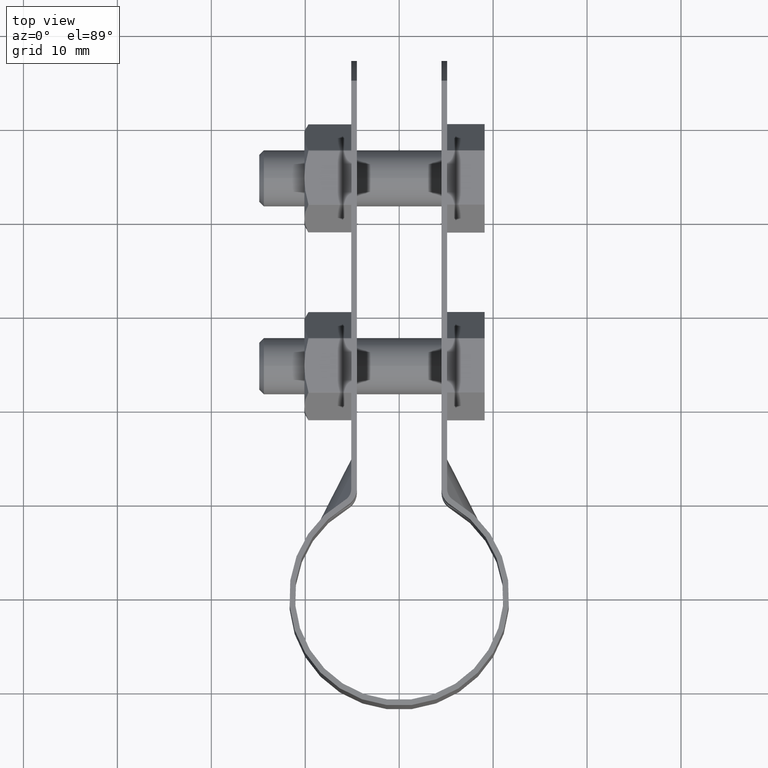
[diagram: clean part render]
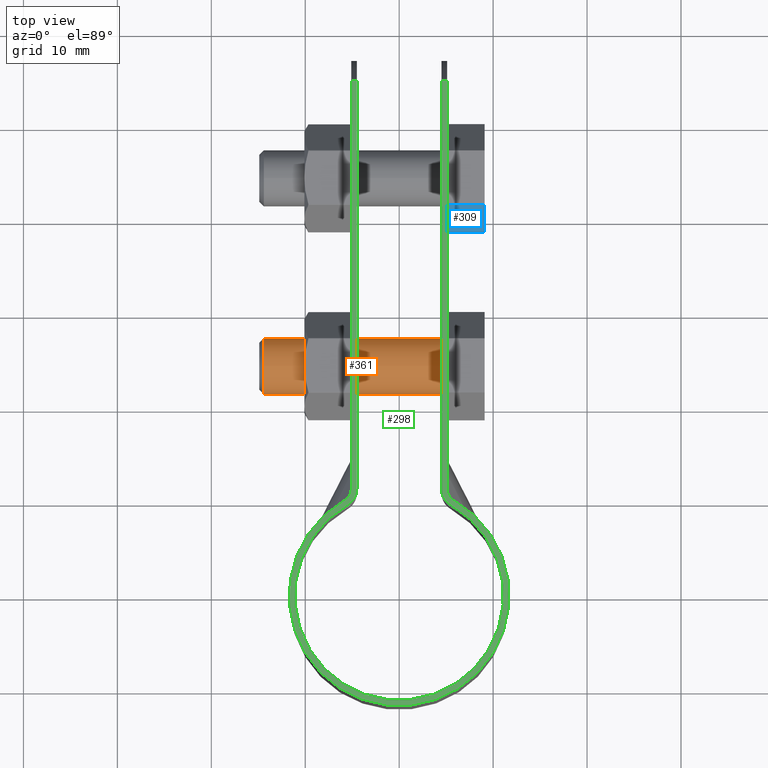
[diagram: same view with three faces highlighted in distinct colors, each labeled with its STEP entity id]
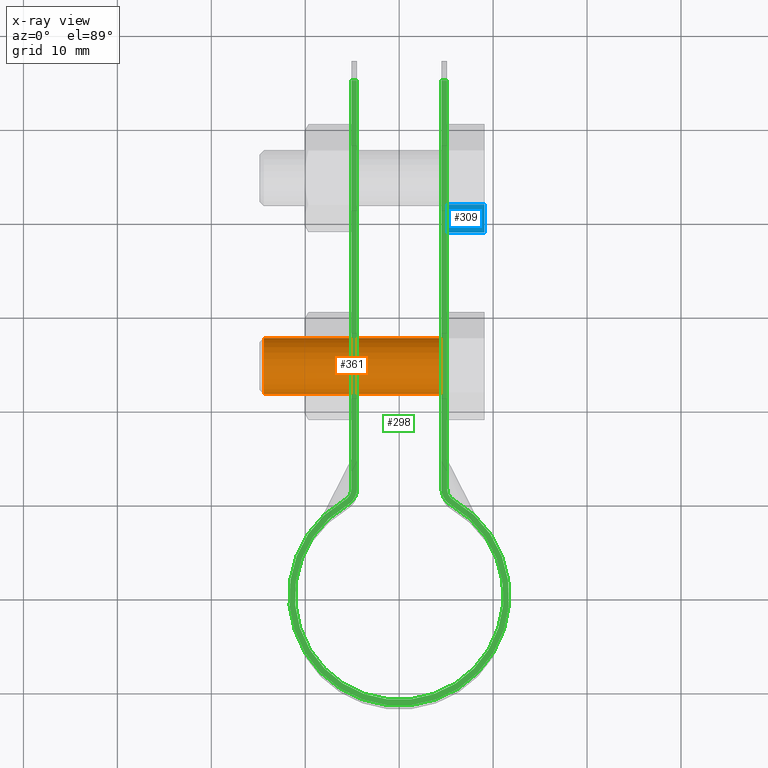
[diagram: x-ray of the same camera — body ghosted, the three highlighted faces saturated]
A machine part, top view with three faces highlighted in distinct colors.
The next image is the same camera in x-ray (body ghosted, the three faces saturated) — at least one of them is partly hidden behind the body in this view.
Their STEP definitions:

[orange] entity #361 — the highlighted cylindrical surface (bore or boss wall) has radius 3 mm, axis along (1, -0, 0).
#361 = ADVANCED_FACE( '', ( #584, #585 ), #586, .T. );
#584 = FACE_OUTER_BOUND( '', #816, .T. );
#585 = FACE_OUTER_BOUND( '', #817, .T. );
#586 = CYLINDRICAL_SURFACE( '', #818, 3.00000000000000 );
#816 = EDGE_LOOP( '', ( #1565 ) );
#817 = EDGE_LOOP( '', ( #1566 ) );
#818 = AXIS2_PLACEMENT_3D( '', #1567, #1568, #1569 );
#1565 = ORIENTED_EDGE( '', *, *, #1845, .T. );
#1566 = ORIENTED_EDGE( '', *, *, #1839, .F. );
#1567 = CARTESIAN_POINT( '', ( 13.5487843911358, 24.6578590263894, -8.67361737988404E-016 ) );
#1568 = DIRECTION( '', ( 1.00000000000000, -6.06692130572647E-017, 0.000000000000000 ) );
#1569 = DIRECTION( '', ( 0.000000000000000, 0.000000000000000, 1.00000000000000 ) );
#1839 = EDGE_CURVE( '', #2230, #2230, #2231, .F. );
#1845 = EDGE_CURVE( '', #2240, #2240, #2241, .T. );
#2230 = VERTEX_POINT( '', #2938 );
#2231 = CIRCLE( '', #2939, 3.00000000000000 );
#2240 = VERTEX_POINT( '', #2953 );
#2241 = CIRCLE( '', #2954, 3.00000000000000 );
#2938 = CARTESIAN_POINT( '', ( 5.10000000000000, 24.6578590263894, 3.00000000000000 ) );
#2939 = AXIS2_PLACEMENT_3D( '', #3351, #3352, #3353 );
#2953 = CARTESIAN_POINT( '', ( -14.4000000000000, 24.6578590263894, -3.00000000000000 ) );
#2954 = AXIS2_PLACEMENT_3D( '', #3359, #3360, #3361 );
#3351 = CARTESIAN_POINT( '', ( 5.10000000000000, 24.6578590263894, -8.67361737988404E-016 ) );
#3352 = DIRECTION( '', ( -1.00000000000000, 6.06692130572647E-017, 0.000000000000000 ) );
#3353 = DIRECTION( '', ( 0.000000000000000, 0.000000000000000, 1.00000000000000 ) );
#3359 = CARTESIAN_POINT( '', ( -14.4000000000000, 24.6578590263894, -8.67361737988404E-016 ) );
#3360 = DIRECTION( '', ( 1.00000000000000, -6.06692130572647E-017, 0.000000000000000 ) );
#3361 = DIRECTION( '', ( 0.000000000000000, 0.000000000000000, -1.00000000000000 ) );

[blue] entity #309 — the highlighted planar face has unit normal (0, 0.866, -0.5).
#309 = ADVANCED_FACE( '', ( #469 ), #470, .F. );
#469 = FACE_OUTER_BOUND( '', #701, .T. );
#470 = PLANE( '', #702 );
#701 = EDGE_LOOP( '', ( #1174, #1175, #1176, #1177 ) );
#702 = AXIS2_PLACEMENT_3D( '', #1178, #1179, #1180 );
#1174 = ORIENTED_EDGE( '', *, *, #1710, .T. );
#1175 = ORIENTED_EDGE( '', *, *, #1726, .F. );
#1176 = ORIENTED_EDGE( '', *, *, #1724, .F. );
#1177 = ORIENTED_EDGE( '', *, *, #1727, .T. );
#1178 = CARTESIAN_POINT( '', ( 9.10000000000000, 41.7711076804412, 5.00000000000000 ) );
#1179 = DIRECTION( '', ( 5.25410797352018E-017, 0.866025403784439, -0.500000000000000 ) );
#1180 = DIRECTION( '', ( 3.03346065286324E-017, 0.500000000000000, 0.866025403784439 ) );
#1710 = EDGE_CURVE( '', #2015, #2013, #2016, .T. );
#1724 = EDGE_CURVE( '', #2038, #2040, #2041, .T. );
#1726 = EDGE_CURVE( '', #2040, #2013, #2043, .T. );
#1727 = EDGE_CURVE( '', #2038, #2015, #2044, .T. );
#2013 = VERTEX_POINT( '', #2542 );
#2015 = VERTEX_POINT( '', #2545 );
#2016 = LINE( '', #2546, #2547 );
#2038 = VERTEX_POINT( '', #2578 );
#2040 = VERTEX_POINT( '', #2581 );
#2041 = LINE( '', #2582, #2583 );
#2043 = LINE( '', #2586, #2587 );
#2044 = LINE( '', #2588, #2589 );
#2542 = CARTESIAN_POINT( '', ( 5.10000000000000, 38.8843563344931, -8.67361737988404E-016 ) );
#2545 = CARTESIAN_POINT( '', ( 5.10000000000000, 41.7711076804412, 5.00000000000000 ) );
#2546 = CARTESIAN_POINT( '', ( 5.10000000000000, 41.7711076804412, 5.00000000000000 ) );
#2547 = VECTOR( '', #3152, 1000.00000000000 );
#2578 = CARTESIAN_POINT( '', ( 9.10000000000000, 41.7711076804412, 5.00000000000000 ) );
#2581 = CARTESIAN_POINT( '', ( 9.10000000000000, 38.8843563344931, -8.67361737988404E-016 ) );
#2582 = CARTESIAN_POINT( '', ( 9.10000000000000, 41.7711076804412, 5.00000000000000 ) );
#2583 = VECTOR( '', #3172, 1000.00000000000 );
#2586 = CARTESIAN_POINT( '', ( 9.10000000000000, 38.8843563344931, -8.67361737988404E-016 ) );
#2587 = VECTOR( '', #3174, 1000.00000000000 );
#2588 = CARTESIAN_POINT( '', ( 9.10000000000000, 41.7711076804412, 5.00000000000000 ) );
#2589 = VECTOR( '', #3175, 1000.00000000000 );
#3152 = DIRECTION( '', ( -3.03346065286324E-017, -0.500000000000000, -0.866025403784439 ) );
#3172 = DIRECTION( '', ( -3.03346065286324E-017, -0.500000000000000, -0.866025403784439 ) );
#3174 = DIRECTION( '', ( -1.00000000000000, 6.06692130572647E-017, 0.000000000000000 ) );
#3175 = DIRECTION( '', ( -1.00000000000000, 6.06692130572647E-017, 0.000000000000000 ) );

[green] entity #298 — the highlighted planar face has unit normal (0, 0, -1).
#298 = ADVANCED_FACE( '', ( #444 ), #445, .F. );
#444 = FACE_OUTER_BOUND( '', #676, .T. );
#445 = PLANE( '', #677 );
#676 = EDGE_LOOP( '', ( #1091, #1092, #1093, #1094, #1095, #1096, #1097, #1098, #1099, #1100, #1101, #1102 ) );
#677 = AXIS2_PLACEMENT_3D( '', #1103, #1104, #1105 );
#1091 = ORIENTED_EDGE( '', *, *, #1682, .F. );
#1092 = ORIENTED_EDGE( '', *, *, #1688, .T. );
#1093 = ORIENTED_EDGE( '', *, *, #1696, .T. );
#1094 = ORIENTED_EDGE( '', *, *, #1636, .T. );
#1095 = ORIENTED_EDGE( '', *, *, #1633, .T. );
#1096 = ORIENTED_EDGE( '', *, *, #1693, .T. );
#1097 = ORIENTED_EDGE( '', *, *, #1684, .F. );
#1098 = ORIENTED_EDGE( '', *, *, #1695, .F. );
#1099 = ORIENTED_EDGE( '', *, *, #1698, .F. );
#1100 = ORIENTED_EDGE( '', *, *, #1701, .F. );
#1101 = ORIENTED_EDGE( '', *, *, #1706, .F. );
#1102 = ORIENTED_EDGE( '', *, *, #1703, .F. );
#1103 = CARTESIAN_POINT( '', ( -4.50000000000000, 57.1578590263894, 12.5000000000000 ) );
#1104 = DIRECTION( '', ( 0.000000000000000, 0.000000000000000, -1.00000000000000 ) );
#1105 = DIRECTION( '', ( -6.06692130572647E-017, -1.00000000000000, 0.000000000000000 ) );
#1633 = EDGE_CURVE( '', #1888, #1886, #1889, .F. );
#1636 = EDGE_CURVE( '', #1893, #1888, #1894, .T. );
#1682 = EDGE_CURVE( '', #1972, #1974, #1975, .T. );
#1684 = EDGE_CURVE( '', #1977, #1978, #1979, .T. );
#1688 = EDGE_CURVE( '', #1972, #1982, #1984, .T. );
#1693 = EDGE_CURVE( '', #1886, #1978, #1991, .T. );
#1695 = EDGE_CURVE( '', #1992, #1977, #1994, .T. );
#1696 = EDGE_CURVE( '', #1982, #1893, #1995, .F. );
#1698 = EDGE_CURVE( '', #1996, #1992, #1998, .T. );
#1701 = EDGE_CURVE( '', #2000, #1996, #2002, .T. );
#1703 = EDGE_CURVE( '', #1974, #2004, #2005, .T. );
#1706 = EDGE_CURVE( '', #2004, #2000, #2008, .T. );
#1886 = VERTEX_POINT( '', #2294 );
#1888 = VERTEX_POINT( '', #2297 );
#1889 = CIRCLE( '', #2298, 1.40000000000000 );
#1893 = VERTEX_POINT( '', #2303 );
#1894 = CIRCLE( '', #2304, 11.7100000000000 );
#1972 = VERTEX_POINT( '', #2483 );
#1974 = VERTEX_POINT( '', #2485 );
#1975 = LINE( '', #2486, #2487 );
#1977 = VERTEX_POINT( '', #2489 );
#1978 = VERTEX_POINT( '', #2490 );
#1979 = LINE( '', #2491, #2492 );
#1982 = VERTEX_POINT( '', #2495 );
#1984 = LINE( '', #2498, #2499 );
#1991 = LINE( '', #2509, #2510 );
#1992 = VERTEX_POINT( '', #2511 );
#1994 = LINE( '', #2514, #2515 );
#1995 = CIRCLE( '', #2516, 1.40000000000000 );
#1996 = VERTEX_POINT( '', #2517 );
#1998 = CIRCLE( '', #2520, 2.00000000000000 );
#2000 = VERTEX_POINT( '', #2523 );
#2002 = CIRCLE( '', #2526, 11.1100000000000 );
#2004 = VERTEX_POINT( '', #2529 );
#2005 = LINE( '', #2530, #2531 );
#2008 = CIRCLE( '', #2535, 2.00000000000000 );
#2294 = CARTESIAN_POINT( '', ( 5.10000000000000, 11.3851701787896, 12.5000000000000 ) );
#2297 = CARTESIAN_POINT( '', ( 5.80587337909993, 10.1693625319318, 12.5000000000000 ) );
#2298 = AXIS2_PLACEMENT_3D( '', #3007, #3008, #3009 );
#2303 = CARTESIAN_POINT( '', ( -5.80587337909993, 10.1693625319318, 12.5000000000000 ) );
#2304 = AXIS2_PLACEMENT_3D( '', #3014, #3015, #3016 );
#2483 = CARTESIAN_POINT( '', ( -5.10000000000000, 54.8496011029445, 12.5000000000000 ) );
#2485 = CARTESIAN_POINT( '', ( -4.50000000000000, 54.8496011029445, 12.5000000000000 ) );
#2486 = CARTESIAN_POINT( '', ( -58.9087638600657, 54.8496011029445, 12.5000000000000 ) );
#2487 = VECTOR( '', #3106, 1000.00000000000 );
#2489 = CARTESIAN_POINT( '', ( 4.50000000000000, 54.8496011029444, 12.5000000000000 ) );
#2490 = CARTESIAN_POINT( '', ( 5.10000000000000, 54.8496011029445, 12.5000000000000 ) );
#2491 = CARTESIAN_POINT( '', ( -58.9087638600657, 54.8496011029445, 12.5000000000000 ) );
#2492 = VECTOR( '', #3110, 1000.00000000000 );
#2495 = CARTESIAN_POINT( '', ( -5.10000000000000, 11.3851701787896, 12.5000000000000 ) );
#2498 = CARTESIAN_POINT( '', ( -5.10000000000000, 57.1578590263894, 12.5000000000000 ) );
#2499 = VECTOR( '', #3118, 1000.00000000000 );
#2509 = CARTESIAN_POINT( '', ( 5.10000000000000, 11.3851701787896, 12.5000000000000 ) );
#2510 = VECTOR( '', #3125, 1000.00000000000 );
#2511 = CARTESIAN_POINT( '', ( 4.50000000000000, 11.3851701787896, 12.5000000000000 ) );
#2514 = CARTESIAN_POINT( '', ( 4.50000000000000, 11.3851701787896, 12.5000000000000 ) );
#2515 = VECTOR( '', #3127, 1000.00000000000 );
#2516 = AXIS2_PLACEMENT_3D( '', #3128, #3129, #3130 );
#2517 = CARTESIAN_POINT( '', ( 5.50839054157132, 9.64830211184992, 12.5000000000000 ) );
#2520 = AXIS2_PLACEMENT_3D( '', #3132, #3133, #3134 );
#2523 = CARTESIAN_POINT( '', ( -5.50839054157132, 9.64830211184992, 12.5000000000000 ) );
#2526 = AXIS2_PLACEMENT_3D( '', #3137, #3138, #3139 );
#2529 = CARTESIAN_POINT( '', ( -4.50000000000000, 11.3851701787896, 12.5000000000000 ) );
#2530 = CARTESIAN_POINT( '', ( -4.50000000000000, 57.1578590263894, 12.5000000000000 ) );
#2531 = VECTOR( '', #3141, 1000.00000000000 );
#2535 = AXIS2_PLACEMENT_3D( '', #3146, #3147, #3148 );
#3007 = CARTESIAN_POINT( '', ( 6.50000000000000, 11.3851701787896, 12.5000000000000 ) );
#3008 = DIRECTION( '', ( 0.000000000000000, 0.000000000000000, 1.00000000000000 ) );
#3009 = DIRECTION( '', ( 1.00000000000000, 0.000000000000000, 0.000000000000000 ) );
#3014 = CARTESIAN_POINT( '', ( 0.000000000000000, 0.000000000000000, 12.5000000000000 ) );
#3015 = DIRECTION( '', ( 0.000000000000000, 0.000000000000000, 1.00000000000000 ) );
#3016 = DIRECTION( '', ( 1.00000000000000, 0.000000000000000, 0.000000000000000 ) );
#3106 = DIRECTION( '', ( 1.00000000000000, -6.06692130572647E-017, -3.08148791101958E-033 ) );
#3110 = DIRECTION( '', ( 1.00000000000000, -6.06692130572647E-017, -3.08148791101958E-033 ) );
#3118 = DIRECTION( '', ( -6.06692130572647E-017, -1.00000000000000, 0.000000000000000 ) );
#3125 = DIRECTION( '', ( 6.06692130572647E-017, 1.00000000000000, 0.000000000000000 ) );
#3127 = DIRECTION( '', ( 6.06692130572647E-017, 1.00000000000000, 0.000000000000000 ) );
#3128 = CARTESIAN_POINT( '', ( -6.50000000000000, 11.3851701787896, 12.5000000000000 ) );
#3129 = DIRECTION( '', ( 0.000000000000000, 0.000000000000000, 1.00000000000000 ) );
#3130 = DIRECTION( '', ( 1.00000000000000, 0.000000000000000, 0.000000000000000 ) );
#3132 = CARTESIAN_POINT( '', ( 6.50000000000000, 11.3851701787896, 12.5000000000000 ) );
#3133 = DIRECTION( '', ( 0.000000000000000, 0.000000000000000, -1.00000000000000 ) );
#3134 = DIRECTION( '', ( -1.00000000000000, 6.06692130572647E-017, 0.000000000000000 ) );
#3137 = CARTESIAN_POINT( '', ( 0.000000000000000, 0.000000000000000, 12.5000000000000 ) );
#3138 = DIRECTION( '', ( 0.000000000000000, 0.000000000000000, 1.00000000000000 ) );
#3139 = DIRECTION( '', ( 1.00000000000000, -6.06692130572647E-017, 0.000000000000000 ) );
#3141 = DIRECTION( '', ( -6.06692130572647E-017, -1.00000000000000, 0.000000000000000 ) );
#3146 = CARTESIAN_POINT( '', ( -6.50000000000000, 11.3851701787896, 12.5000000000000 ) );
#3147 = DIRECTION( '', ( 0.000000000000000, 0.000000000000000, -1.00000000000000 ) );
#3148 = DIRECTION( '', ( 1.00000000000000, -6.06692130572647E-017, 0.000000000000000 ) );